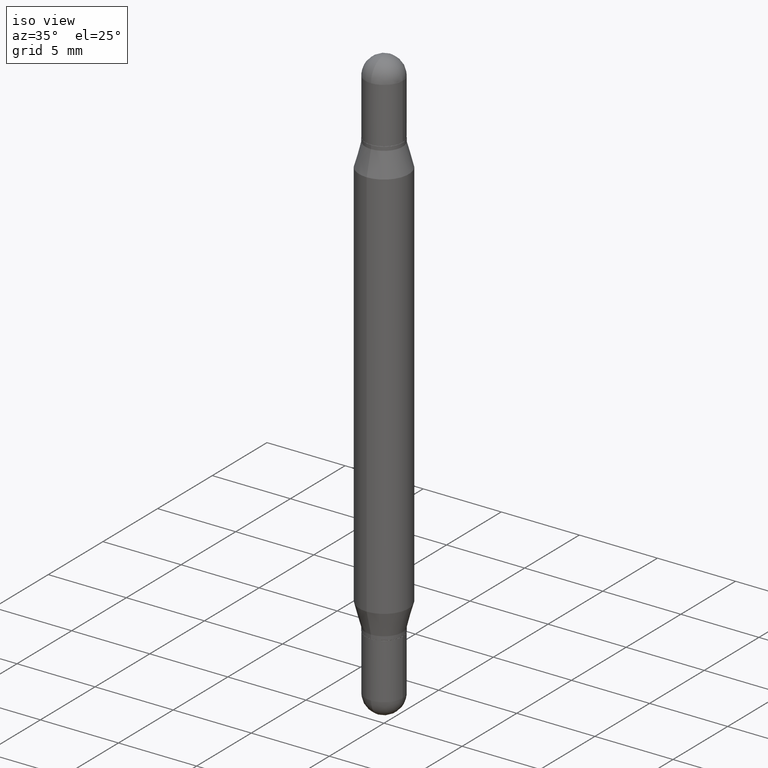
[diagram: clean part render]
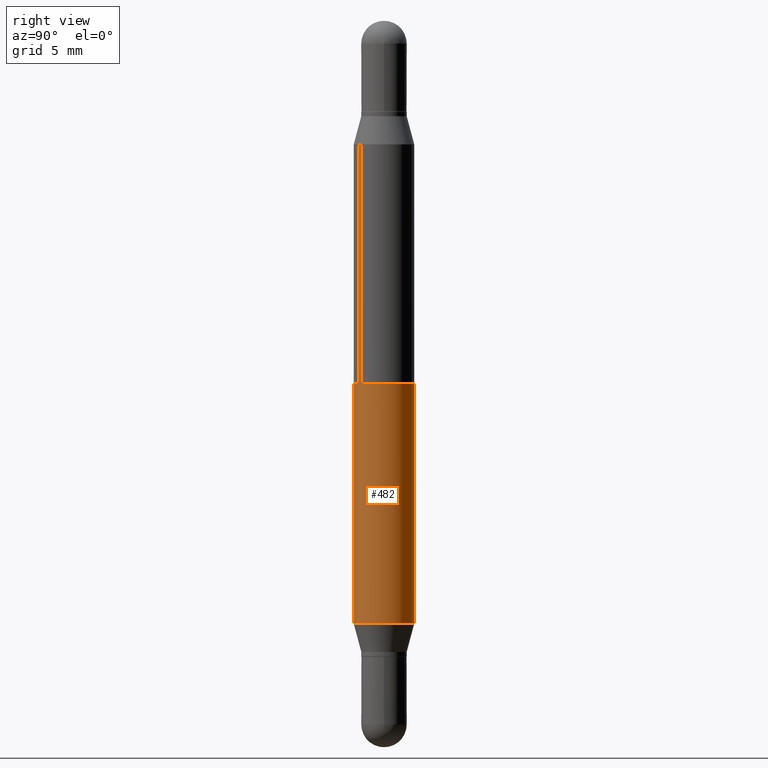
[diagram: tour spotlight — one face highlighted and labeled with its STEP entity id]
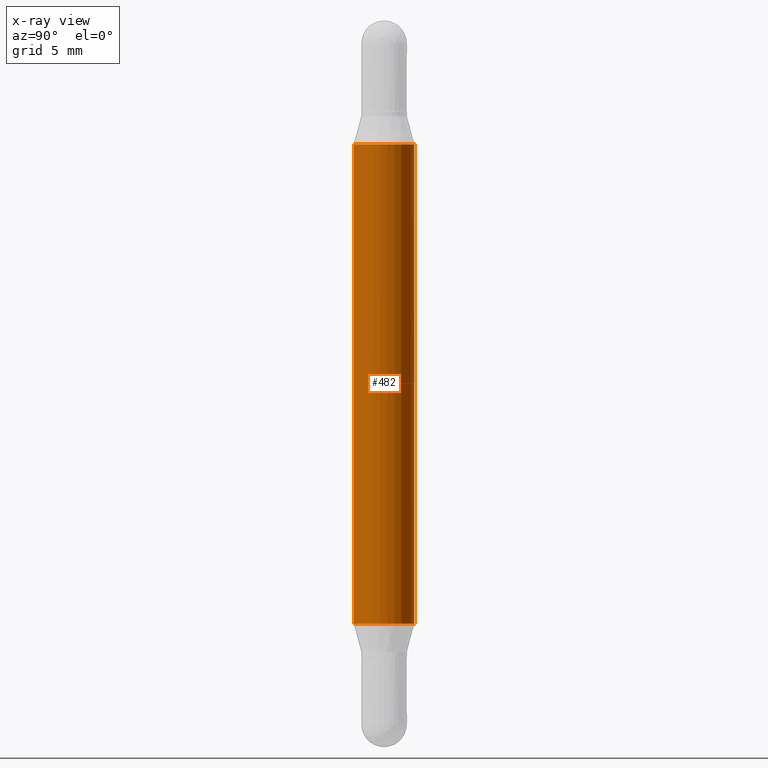
[diagram: x-ray of the same camera — body ghosted, this tour face saturated]
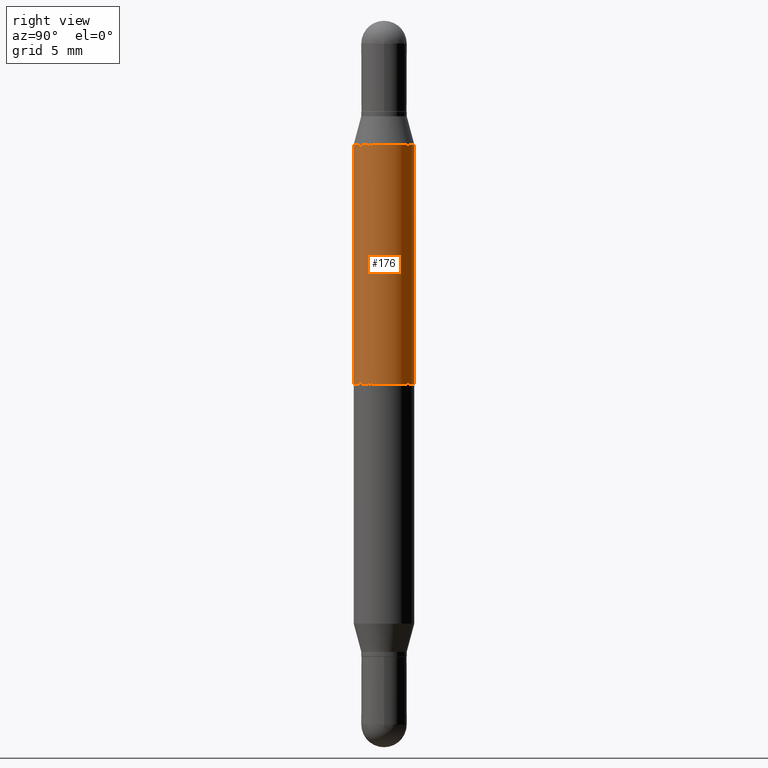
[diagram: tour spotlight — one face highlighted and labeled with its STEP entity id]
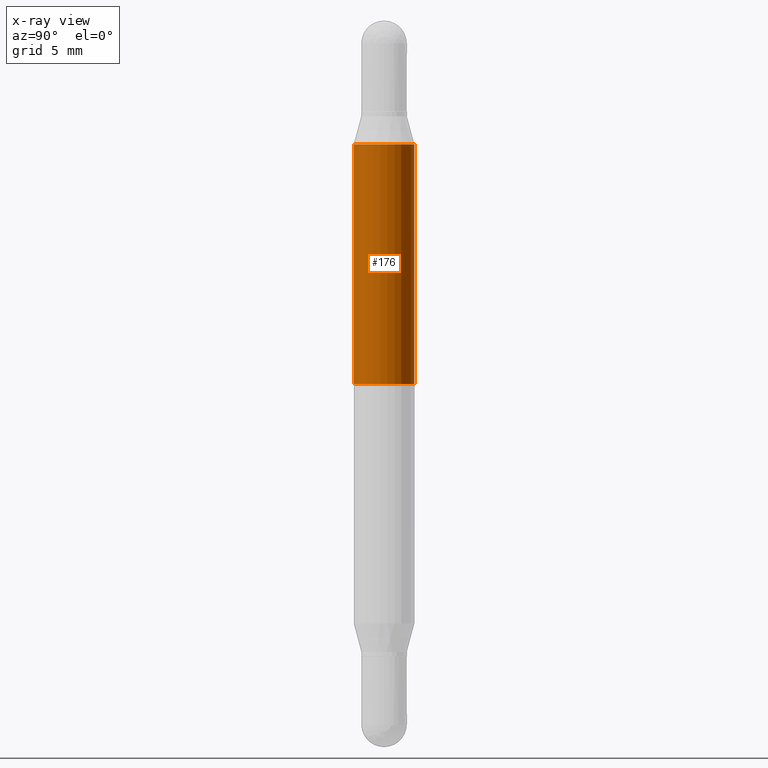
[diagram: x-ray of the same camera — body ghosted, this tour face saturated]
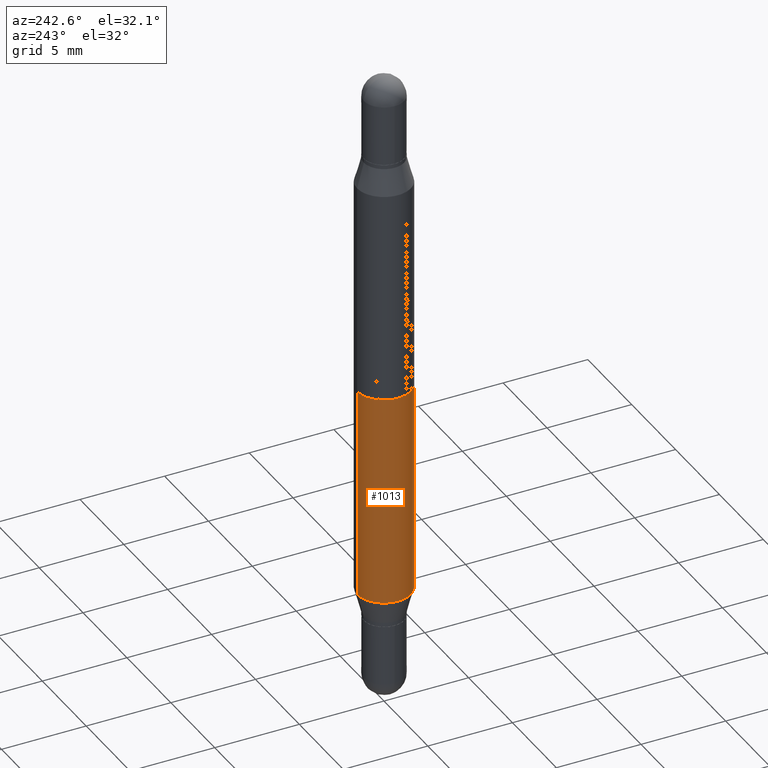
[diagram: tour spotlight — one face highlighted and labeled with its STEP entity id]
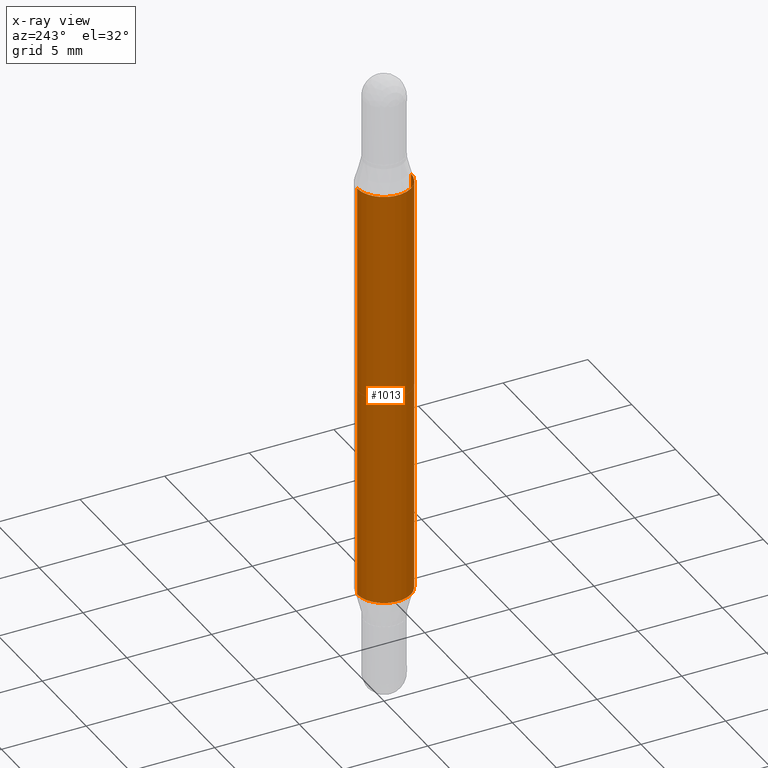
[diagram: x-ray of the same camera — body ghosted, this tour face saturated]
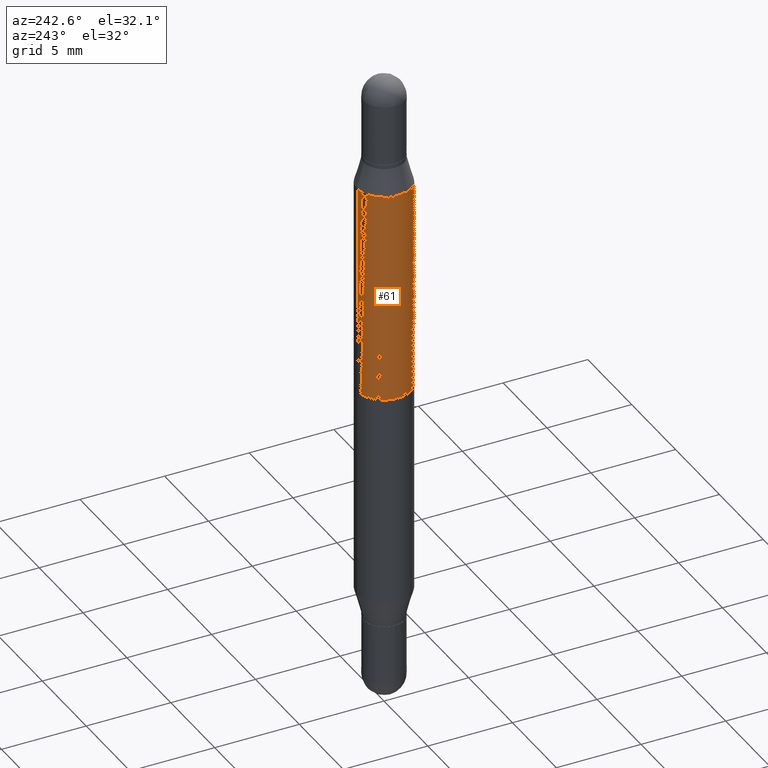
[diagram: tour spotlight — one face highlighted and labeled with its STEP entity id]
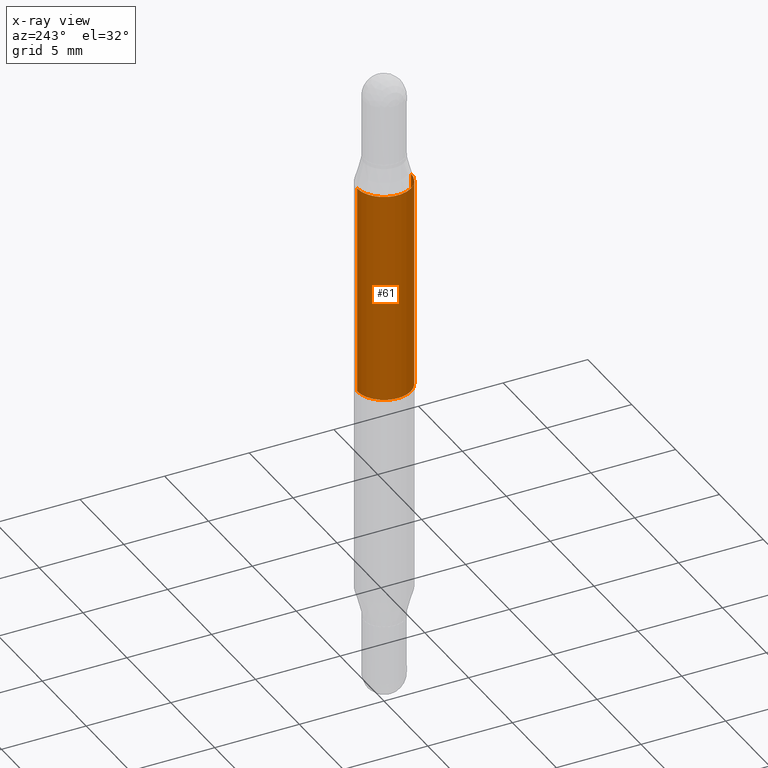
[diagram: x-ray of the same camera — body ghosted, this tour face saturated]
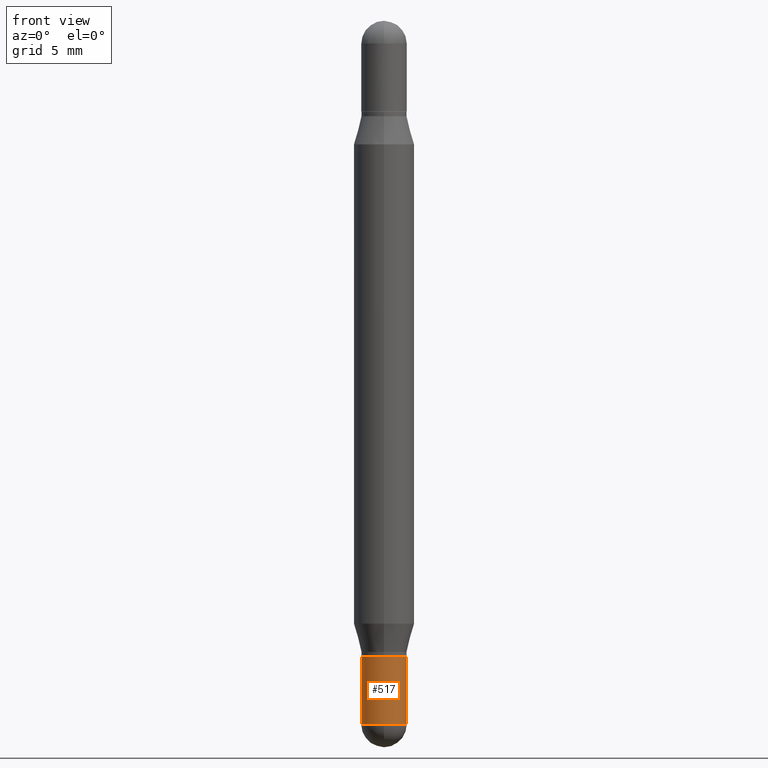
[diagram: tour spotlight — one face highlighted and labeled with its STEP entity id]
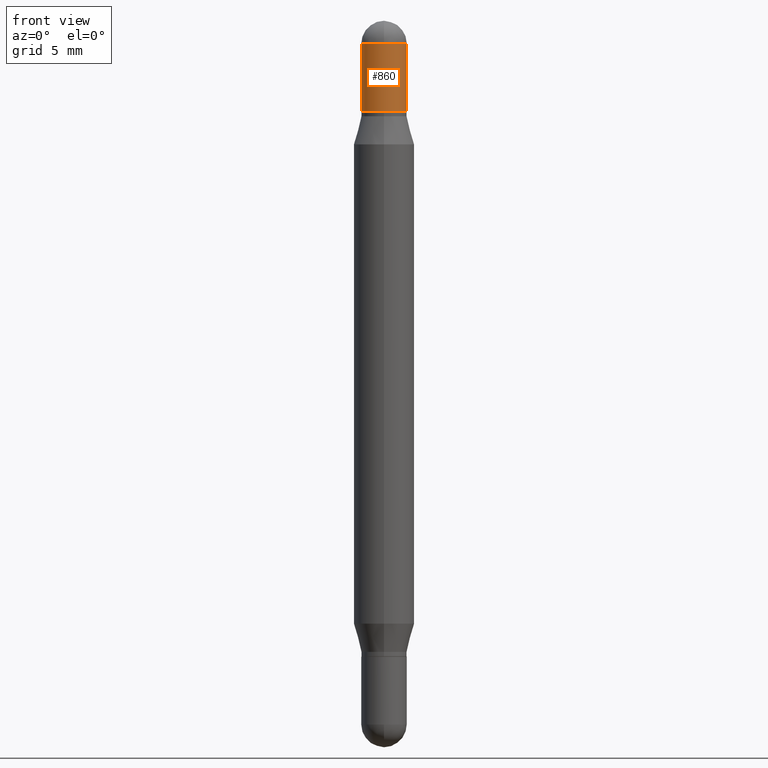
[diagram: tour spotlight — one face highlighted and labeled with its STEP entity id]
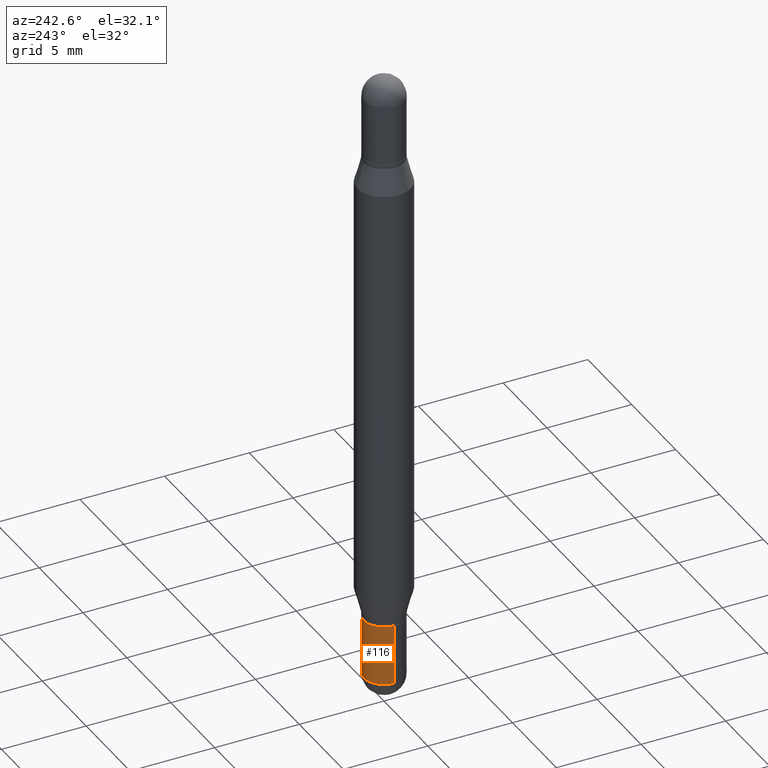
[diagram: tour spotlight — one face highlighted and labeled with its STEP entity id]
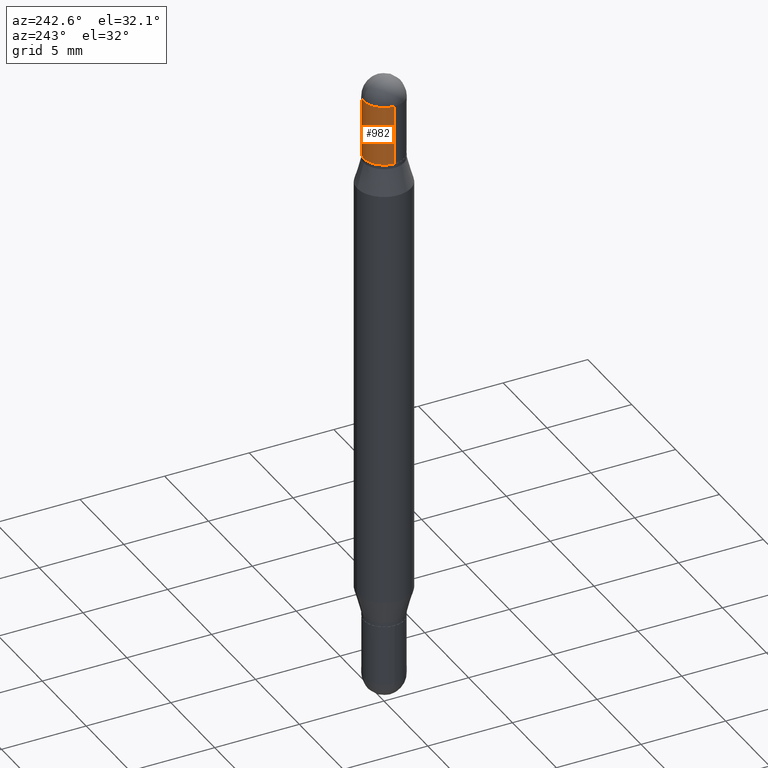
[diagram: tour spotlight — one face highlighted and labeled with its STEP entity id]
A machine part: a face-by-face anatomy tour. The part has 41 B-rep faces; the first image is the clean iso view, then the 8 largest visible faces are spotlighted one at a time (largest first), each with its STEP entity span.

Face 1 — right view, entity #482. An x-ray twin of the same camera follows (body ghosted, this face saturated) — the face is partly hidden behind the body. In plain terms, the highlighted cylindrical surface (edge-blend (fillet) strip) has radius 1.5875 mm, axis along (-0, -0, -1).
Definition (entity closure, byte-faithful):
#1 = ORIENTED_EDGE ( 'NONE', *, *, #1002, .F. ) ;
#3 = DIRECTION ( 'NONE',  ( -6.982962677686265922E-15, -1.000000000000000000, 4.370956789862821150E-15 ) ) ;
#32 = VERTEX_POINT ( 'NONE', #991 ) ;
#47 = CARTESIAN_POINT ( 'NONE',  ( 0.000000000000000000, -5.228321854365732350E-15, -1.500000000000000444 ) ) ;
#52 = DIRECTION ( 'NONE',  ( -2.445640986217375071E-29, -3.479861038583872715E-15, -1.000000000000000000 ) ) ;
#162 = VERTEX_POINT ( 'NONE', #530 ) ;
#174 = CARTESIAN_POINT ( 'NONE',  ( 3.044285004926114619E-29, -4.345819239403255342E-15, -1.244780007401924626 ) ) ;
#197 = CARTESIAN_POINT ( 'NONE',  ( -4.364351673553916201E-16, -0.06250000000000521805, -1.500000000000000222 ) ) ;
#278 = LINE ( 'NONE', #197, #833 ) ;
#293 = AXIS2_PLACEMENT_3D ( 'NONE', #174, #934, #3 ) ;
#346 = AXIS2_PLACEMENT_3D ( 'NONE', #47, #52, #738 ) ;
#353 = EDGE_CURVE ( 'NONE', #498, #843, #278, .T. ) ;
#368 = CIRCLE ( 'NONE', #293, 0.06250000000000000000 ) ;
#372 = CARTESIAN_POINT ( 'NONE',  ( -4.364351673553611504E-16, -0.06250000000000434375, -1.244780007401924404 ) ) ;
#396 = LINE ( 'NONE', #675, #404 ) ;
#404 = VECTOR ( 'NONE', #914, 39.37007874015748143 ) ;
#409 = CARTESIAN_POINT ( 'NONE',  ( 3.044285004926114619E-29, -8.966604049996300104E-16, -0.2552199925980758177 ) ) ;
#482 = ADVANCED_FACE ( 'NONE', ( #501 ), #759, .T. ) ;
#498 = VERTEX_POINT ( 'NONE', #1090 ) ;
#501 = FACE_OUTER_BOUND ( 'NONE', #550, .T. ) ;
#525 = CIRCLE ( 'NONE', #922, 0.06250000000000000000 ) ;
#530 = CARTESIAN_POINT ( 'NONE',  ( 4.287811248607390144E-16, 0.06249999999999565625, -1.244780007401924848 ) ) ;
#550 = EDGE_LOOP ( 'NONE', ( #740, #1, #689, #790 ) ) ;
#578 = EDGE_CURVE ( 'NONE', #32, #162, #396, .T. ) ;
#675 = CARTESIAN_POINT ( 'NONE',  ( 4.287811248607206733E-16, 0.06249999999999477501, -1.500000000000000666 ) ) ;
#689 = ORIENTED_EDGE ( 'NONE', *, *, #353, .T. ) ;
#724 = DIRECTION ( 'NONE',  ( -2.445640986217375071E-29, -3.479861038583872715E-15, -1.000000000000000000 ) ) ;
#738 = DIRECTION ( 'NONE',  ( -6.982962677686265922E-15, -1.000000000000000000, 4.370956789862821150E-15 ) ) ;
#740 = ORIENTED_EDGE ( 'NONE', *, *, #578, .F. ) ;
#759 = CYLINDRICAL_SURFACE ( 'NONE', #346, 0.06250000000000000000 ) ;
#790 = ORIENTED_EDGE ( 'NONE', *, *, #1103, .T. ) ;
#833 = VECTOR ( 'NONE', #724, 39.37007874015748143 ) ;
#843 = VERTEX_POINT ( 'NONE', #372 ) ;
#914 = DIRECTION ( 'NONE',  ( -2.445640986217375071E-29, -3.479861038583872715E-15, -1.000000000000000000 ) ) ;
#922 = AXIS2_PLACEMENT_3D ( 'NONE', #409, #926, #1083 ) ;
#926 = DIRECTION ( 'NONE',  ( 2.445640986217375071E-29, 3.479861038583872715E-15, 1.000000000000000000 ) ) ;
#934 = DIRECTION ( 'NONE',  ( -2.445640986217375071E-29, 3.491234767237101121E-15, 1.000000000000000000 ) ) ;
#991 = CARTESIAN_POINT ( 'NONE',  ( 4.287811248607510938E-16, 0.06249999999999910488, -0.2552199925980759843 ) ) ;
#1002 = EDGE_CURVE ( 'NONE', #498, #32, #525, .T. ) ;
#1083 = DIRECTION ( 'NONE',  ( -6.982962677686265922E-15, -1.000000000000000000, 3.278217592397115862E-15 ) ) ;
#1090 = CARTESIAN_POINT ( 'NONE',  ( -4.364351673553612490E-16, -0.06250000000000090206, -0.2552199925980755957 ) ) ;
#1103 = EDGE_CURVE ( 'NONE', #843, #162, #368, .T. ) ;

Face 2 — right view, entity #176. An x-ray twin of the same camera follows (body ghosted, this face saturated) — the face is partly hidden behind the body. In plain terms, the highlighted cylindrical surface (edge-blend (fillet) strip) has radius 1.5875 mm, axis along (-0, -0, -1).
Definition (entity closure, byte-faithful):
#95 = CIRCLE ( 'NONE', #976, 0.06250000000000000000 ) ;
#133 = DIRECTION ( 'NONE',  ( 2.445640986217375071E-29, 3.479861038583872715E-15, 1.000000000000000000 ) ) ;
#147 = CIRCLE ( 'NONE', #1015, 0.06250000000000000000 ) ;
#153 = EDGE_CURVE ( 'NONE', #999, #826, #506, .T. ) ;
#163 = EDGE_CURVE ( 'NONE', #826, #261, #147, .T. ) ;
#169 = DIRECTION ( 'NONE',  ( -2.445640986217375071E-29, -3.479861038583872715E-15, -1.000000000000000000 ) ) ;
#176 = ADVANCED_FACE ( 'NONE', ( #1097 ), #317, .T. ) ;
#218 = ORIENTED_EDGE ( 'NONE', *, *, #163, .F. ) ;
#261 = VERTEX_POINT ( 'NONE', #683 ) ;
#317 = CYLINDRICAL_SURFACE ( 'NONE', #688, 0.06250000000000000000 ) ;
#350 = EDGE_LOOP ( 'NONE', ( #492, #758, #992, #218 ) ) ;
#398 = VECTOR ( 'NONE', #1029, 39.37007874015748143 ) ;
#407 = CARTESIAN_POINT ( 'NONE',  ( 1.834230739663031583E-29, -2.618426075427826630E-15, -0.7500000000000002220 ) ) ;
#428 = DIRECTION ( 'NONE',  ( -6.982962677686265922E-15, -1.000000000000000000, 4.370956789862821150E-15 ) ) ;
#480 = CARTESIAN_POINT ( 'NONE',  ( 3.044285004926114619E-29, -8.966604049996300104E-16, -0.2552199925980758177 ) ) ;
#492 = ORIENTED_EDGE ( 'NONE', *, *, #153, .F. ) ;
#506 = LINE ( 'NONE', #581, #398 ) ;
#528 = EDGE_CURVE ( 'NONE', #648, #999, #95, .T. ) ;
#581 = CARTESIAN_POINT ( 'NONE',  ( 4.287811248607206733E-16, 0.06249999999999477501, -1.500000000000000666 ) ) ;
#590 = LINE ( 'NONE', #935, #709 ) ;
#594 = DIRECTION ( 'NONE',  ( -0.000000000000000000, -3.485547902910486918E-15, -1.000000000000000000 ) ) ;
#648 = VERTEX_POINT ( 'NONE', #848 ) ;
#665 = CARTESIAN_POINT ( 'NONE',  ( 4.287811248607510938E-16, 0.06249999999999910488, -0.2552199925980759843 ) ) ;
#683 = CARTESIAN_POINT ( 'NONE',  ( -4.364351673553732298E-16, -0.06250000000000262290, -0.7499999999999998890 ) ) ;
#688 = AXIS2_PLACEMENT_3D ( 'NONE', #1116, #169, #428 ) ;
#709 = VECTOR ( 'NONE', #792, 39.37007874015748143 ) ;
#758 = ORIENTED_EDGE ( 'NONE', *, *, #528, .F. ) ;
#777 = EDGE_CURVE ( 'NONE', #648, #261, #590, .T. ) ;
#792 = DIRECTION ( 'NONE',  ( -2.445640986217375071E-29, -3.479861038583872715E-15, -1.000000000000000000 ) ) ;
#826 = VERTEX_POINT ( 'NONE', #1060 ) ;
#840 = DIRECTION ( 'NONE',  ( -6.982962677686265922E-15, -1.000000000000000000, 3.278217592397115862E-15 ) ) ;
#848 = CARTESIAN_POINT ( 'NONE',  ( -4.364351673553612490E-16, -0.06250000000000090206, -0.2552199925980755957 ) ) ;
#935 = CARTESIAN_POINT ( 'NONE',  ( -4.364351673553916201E-16, -0.06250000000000521805, -1.500000000000000222 ) ) ;
#940 = DIRECTION ( 'NONE',  ( 0.000000000000000000, 1.000000000000000000, -4.370956789862821150E-15 ) ) ;
#976 = AXIS2_PLACEMENT_3D ( 'NONE', #480, #133, #840 ) ;
#992 = ORIENTED_EDGE ( 'NONE', *, *, #777, .T. ) ;
#999 = VERTEX_POINT ( 'NONE', #665 ) ;
#1015 = AXIS2_PLACEMENT_3D ( 'NONE', #407, #594, #940 ) ;
#1029 = DIRECTION ( 'NONE',  ( -2.445640986217375071E-29, -3.479861038583872715E-15, -1.000000000000000000 ) ) ;
#1060 = CARTESIAN_POINT ( 'NONE',  ( 4.287811248607450787E-16, 0.06249999999999737710, -0.7500000000000004441 ) ) ;
#1097 = FACE_OUTER_BOUND ( 'NONE', #350, .T. ) ;
#1116 = CARTESIAN_POINT ( 'NONE',  ( 0.000000000000000000, -5.228321854365732350E-15, -1.500000000000000444 ) ) ;

Face 3 — auxiliary view, entity #1013. An x-ray twin of the same camera follows (body ghosted, this face saturated) — the face is partly hidden behind the body. In plain terms, the highlighted cylindrical surface (edge-blend (fillet) strip) has radius 1.5875 mm, axis along (-0, -0, -1).
Definition (entity closure, byte-faithful):
#26 = CARTESIAN_POINT ( 'NONE',  ( 3.044285004926114619E-29, -4.345819239403255342E-15, -1.244780007401924626 ) ) ;
#32 = VERTEX_POINT ( 'NONE', #991 ) ;
#162 = VERTEX_POINT ( 'NONE', #530 ) ;
#197 = CARTESIAN_POINT ( 'NONE',  ( -4.364351673553916201E-16, -0.06250000000000521805, -1.500000000000000222 ) ) ;
#226 = FACE_OUTER_BOUND ( 'NONE', #676, .T. ) ;
#241 = ORIENTED_EDGE ( 'NONE', *, *, #445, .T. ) ;
#278 = LINE ( 'NONE', #197, #833 ) ;
#303 = ORIENTED_EDGE ( 'NONE', *, *, #578, .T. ) ;
#353 = EDGE_CURVE ( 'NONE', #498, #843, #278, .T. ) ;
#372 = CARTESIAN_POINT ( 'NONE',  ( -4.364351673553611504E-16, -0.06250000000000434375, -1.244780007401924404 ) ) ;
#396 = LINE ( 'NONE', #675, #404 ) ;
#404 = VECTOR ( 'NONE', #914, 39.37007874015748143 ) ;
#406 = CARTESIAN_POINT ( 'NONE',  ( 3.044285004926114619E-29, -8.966604049996300104E-16, -0.2552199925980758177 ) ) ;
#437 = CIRCLE ( 'NONE', #510, 0.06250000000000000000 ) ;
#445 = EDGE_CURVE ( 'NONE', #162, #843, #452, .T. ) ;
#452 = CIRCLE ( 'NONE', #1091, 0.06250000000000000000 ) ;
#481 = EDGE_CURVE ( 'NONE', #32, #498, #437, .T. ) ;
#498 = VERTEX_POINT ( 'NONE', #1090 ) ;
#510 = AXIS2_PLACEMENT_3D ( 'NONE', #406, #657, #845 ) ;
#530 = CARTESIAN_POINT ( 'NONE',  ( 4.287811248607390144E-16, 0.06249999999999565625, -1.244780007401924848 ) ) ;
#541 = AXIS2_PLACEMENT_3D ( 'NONE', #741, #649, #643 ) ;
#574 = ORIENTED_EDGE ( 'NONE', *, *, #481, .F. ) ;
#578 = EDGE_CURVE ( 'NONE', #32, #162, #396, .T. ) ;
#643 = DIRECTION ( 'NONE',  ( -6.982962677686265922E-15, -1.000000000000000000, 4.370956789862821150E-15 ) ) ;
#649 = DIRECTION ( 'NONE',  ( -2.445640986217375071E-29, -3.479861038583872715E-15, -1.000000000000000000 ) ) ;
#657 = DIRECTION ( 'NONE',  ( 2.445640986217375071E-29, 3.479861038583872715E-15, 1.000000000000000000 ) ) ;
#675 = CARTESIAN_POINT ( 'NONE',  ( 4.287811248607206733E-16, 0.06249999999999477501, -1.500000000000000666 ) ) ;
#676 = EDGE_LOOP ( 'NONE', ( #574, #303, #241, #838 ) ) ;
#713 = DIRECTION ( 'NONE',  ( -6.982962677686265922E-15, -1.000000000000000000, 4.370956789862821150E-15 ) ) ;
#724 = DIRECTION ( 'NONE',  ( -2.445640986217375071E-29, -3.479861038583872715E-15, -1.000000000000000000 ) ) ;
#741 = CARTESIAN_POINT ( 'NONE',  ( 0.000000000000000000, -5.228321854365732350E-15, -1.500000000000000444 ) ) ;
#804 = DIRECTION ( 'NONE',  ( -2.445640986217375071E-29, 3.491234767237101121E-15, 1.000000000000000000 ) ) ;
#833 = VECTOR ( 'NONE', #724, 39.37007874015748143 ) ;
#838 = ORIENTED_EDGE ( 'NONE', *, *, #353, .F. ) ;
#843 = VERTEX_POINT ( 'NONE', #372 ) ;
#845 = DIRECTION ( 'NONE',  ( -6.982962677686265922E-15, -1.000000000000000000, 3.278217592397115862E-15 ) ) ;
#914 = DIRECTION ( 'NONE',  ( -2.445640986217375071E-29, -3.479861038583872715E-15, -1.000000000000000000 ) ) ;
#991 = CARTESIAN_POINT ( 'NONE',  ( 4.287811248607510938E-16, 0.06249999999999910488, -0.2552199925980759843 ) ) ;
#1013 = ADVANCED_FACE ( 'NONE', ( #226 ), #1101, .T. ) ;
#1090 = CARTESIAN_POINT ( 'NONE',  ( -4.364351673553612490E-16, -0.06250000000000090206, -0.2552199925980755957 ) ) ;
#1091 = AXIS2_PLACEMENT_3D ( 'NONE', #26, #804, #713 ) ;
#1101 = CYLINDRICAL_SURFACE ( 'NONE', #541, 0.06250000000000000000 ) ;

Face 4 — auxiliary view, entity #61. An x-ray twin of the same camera follows (body ghosted, this face saturated) — the face is partly hidden behind the body. In plain terms, the highlighted cylindrical surface (edge-blend (fillet) strip) has radius 1.5875 mm, axis along (-0, -0, -1).
Definition (entity closure, byte-faithful):
#61 = ADVANCED_FACE ( 'NONE', ( #207 ), #910, .T. ) ;
#82 = DIRECTION ( 'NONE',  ( 2.445640986217375071E-29, 3.479861038583872715E-15, 1.000000000000000000 ) ) ;
#143 = DIRECTION ( 'NONE',  ( -2.445640986217375071E-29, -3.479861038583872715E-15, -1.000000000000000000 ) ) ;
#150 = AXIS2_PLACEMENT_3D ( 'NONE', #705, #975, #806 ) ;
#153 = EDGE_CURVE ( 'NONE', #999, #826, #506, .T. ) ;
#165 = EDGE_CURVE ( 'NONE', #999, #648, #328, .T. ) ;
#182 = AXIS2_PLACEMENT_3D ( 'NONE', #298, #143, #397 ) ;
#190 = ORIENTED_EDGE ( 'NONE', *, *, #801, .F. ) ;
#207 = FACE_OUTER_BOUND ( 'NONE', #1088, .T. ) ;
#261 = VERTEX_POINT ( 'NONE', #683 ) ;
#298 = CARTESIAN_POINT ( 'NONE',  ( 0.000000000000000000, -5.228321854365732350E-15, -1.500000000000000444 ) ) ;
#328 = CIRCLE ( 'NONE', #778, 0.06250000000000000000 ) ;
#343 = ORIENTED_EDGE ( 'NONE', *, *, #153, .T. ) ;
#397 = DIRECTION ( 'NONE',  ( -6.982962677686265922E-15, -1.000000000000000000, 4.370956789862821150E-15 ) ) ;
#398 = VECTOR ( 'NONE', #1029, 39.37007874015748143 ) ;
#494 = CIRCLE ( 'NONE', #150, 0.06250000000000000000 ) ;
#506 = LINE ( 'NONE', #581, #398 ) ;
#581 = CARTESIAN_POINT ( 'NONE',  ( 4.287811248607206733E-16, 0.06249999999999477501, -1.500000000000000666 ) ) ;
#590 = LINE ( 'NONE', #935, #709 ) ;
#591 = CARTESIAN_POINT ( 'NONE',  ( 3.044285004926114619E-29, -8.966604049996300104E-16, -0.2552199925980758177 ) ) ;
#648 = VERTEX_POINT ( 'NONE', #848 ) ;
#655 = ORIENTED_EDGE ( 'NONE', *, *, #165, .F. ) ;
#665 = CARTESIAN_POINT ( 'NONE',  ( 4.287811248607510938E-16, 0.06249999999999910488, -0.2552199925980759843 ) ) ;
#683 = CARTESIAN_POINT ( 'NONE',  ( -4.364351673553732298E-16, -0.06250000000000262290, -0.7499999999999998890 ) ) ;
#705 = CARTESIAN_POINT ( 'NONE',  ( 1.834230739663031583E-29, -2.618426075427826630E-15, -0.7500000000000002220 ) ) ;
#709 = VECTOR ( 'NONE', #792, 39.37007874015748143 ) ;
#728 = ORIENTED_EDGE ( 'NONE', *, *, #777, .F. ) ;
#777 = EDGE_CURVE ( 'NONE', #648, #261, #590, .T. ) ;
#778 = AXIS2_PLACEMENT_3D ( 'NONE', #591, #82, #1047 ) ;
#792 = DIRECTION ( 'NONE',  ( -2.445640986217375071E-29, -3.479861038583872715E-15, -1.000000000000000000 ) ) ;
#801 = EDGE_CURVE ( 'NONE', #261, #826, #494, .T. ) ;
#806 = DIRECTION ( 'NONE',  ( 0.000000000000000000, 1.000000000000000000, -4.370956789862821150E-15 ) ) ;
#826 = VERTEX_POINT ( 'NONE', #1060 ) ;
#848 = CARTESIAN_POINT ( 'NONE',  ( -4.364351673553612490E-16, -0.06250000000000090206, -0.2552199925980755957 ) ) ;
#910 = CYLINDRICAL_SURFACE ( 'NONE', #182, 0.06250000000000000000 ) ;
#935 = CARTESIAN_POINT ( 'NONE',  ( -4.364351673553916201E-16, -0.06250000000000521805, -1.500000000000000222 ) ) ;
#975 = DIRECTION ( 'NONE',  ( -0.000000000000000000, -3.485547902910486918E-15, -1.000000000000000000 ) ) ;
#999 = VERTEX_POINT ( 'NONE', #665 ) ;
#1029 = DIRECTION ( 'NONE',  ( -2.445640986217375071E-29, -3.479861038583872715E-15, -1.000000000000000000 ) ) ;
#1047 = DIRECTION ( 'NONE',  ( -6.982962677686265922E-15, -1.000000000000000000, 3.278217592397115862E-15 ) ) ;
#1060 = CARTESIAN_POINT ( 'NONE',  ( 4.287811248607450787E-16, 0.06249999999999737710, -0.7500000000000004441 ) ) ;
#1088 = EDGE_LOOP ( 'NONE', ( #655, #343, #190, #728 ) ) ;

Face 5 — front view, entity #517. In plain terms, the highlighted cylindrical surface (edge-blend (fillet) strip) has radius 1.1913 mm, axis along (-0, 0, 1).
Definition (entity closure, byte-faithful):
#29 = DIRECTION ( 'NONE',  ( -2.445468806185136597E-29, 3.491481338843145583E-15, 1.000000000000000000 ) ) ;
#68 = CARTESIAN_POINT ( 'NONE',  ( -0.04689999999999999725, -4.495648722615525747E-15, -1.313000000000000167 ) ) ;
#69 = CARTESIAN_POINT ( 'NONE',  ( 0.04689999999999999725, -3.275009495834859024E-16, 2.286926907848294038E-30 ) ) ;
#72 = CARTESIAN_POINT ( 'NONE',  ( -3.275009495834508474E-16, -0.04690000000000513897, -1.453099999999999614 ) ) ;
#135 = VERTEX_POINT ( 'NONE', #645 ) ;
#137 = LINE ( 'NONE', #227, #745 ) ;
#142 = FACE_OUTER_BOUND ( 'NONE', #373, .T. ) ;
#149 = CARTESIAN_POINT ( 'NONE',  ( 0.04689999999999999725, -5.156394215270499012E-15, -1.453099999999999836 ) ) ;
#166 = AXIS2_PLACEMENT_3D ( 'NONE', #624, #798, #446 ) ;
#213 = EDGE_CURVE ( 'NONE', #497, #135, #701, .T. ) ;
#216 = DIRECTION ( 'NONE',  ( -2.445468806185136597E-29, 3.491481338843145583E-15, 1.000000000000000000 ) ) ;
#222 = CYLINDRICAL_SURFACE ( 'NONE', #1109, 0.04689999999999999725 ) ;
#227 = CARTESIAN_POINT ( 'NONE',  ( -0.04689999999999999725, 3.332445430714869676E-16, -2.306980557329550952E-30 ) ) ;
#272 = AXIS2_PLACEMENT_3D ( 'NONE', #816, #216, #990 ) ;
#294 = CARTESIAN_POINT ( 'NONE',  ( 3.553510722267622201E-29, -5.073471533472974042E-15, -1.453099999999999836 ) ) ;
#332 = EDGE_CURVE ( 'NONE', #418, #554, #651, .T. ) ;
#347 = CIRCLE ( 'NONE', #614, 0.04689999999999999725 ) ;
#364 = CIRCLE ( 'NONE', #272, 0.04689999999999999725 ) ;
#373 = EDGE_LOOP ( 'NONE', ( #626, #503, #514, #402, #605 ) ) ;
#402 = ORIENTED_EDGE ( 'NONE', *, *, #213, .T. ) ;
#418 = VERTEX_POINT ( 'NONE', #985 ) ;
#443 = EDGE_CURVE ( 'NONE', #485, #135, #364, .T. ) ;
#444 = DIRECTION ( 'NONE',  ( 1.000000000000000000, -6.982962677686277755E-15, 0.000000000000000000 ) ) ;
#446 = DIRECTION ( 'NONE',  ( 1.000000000000000000, -6.982962677686277755E-15, 0.000000000000000000 ) ) ;
#485 = VERTEX_POINT ( 'NONE', #68 ) ;
#497 = VERTEX_POINT ( 'NONE', #149 ) ;
#503 = ORIENTED_EDGE ( 'NONE', *, *, #332, .T. ) ;
#514 = ORIENTED_EDGE ( 'NONE', *, *, #814, .T. ) ;
#517 = ADVANCED_FACE ( 'NONE', ( #142 ), #222, .T. ) ;
#548 = EDGE_CURVE ( 'NONE', #418, #485, #137, .T. ) ;
#554 = VERTEX_POINT ( 'NONE', #72 ) ;
#572 = DIRECTION ( 'NONE',  ( -2.445468806185136597E-29, 3.491481338843145583E-15, 1.000000000000000000 ) ) ;
#587 = CARTESIAN_POINT ( 'NONE',  ( 0.000000000000000000, 0.000000000000000000, 0.000000000000000000 ) ) ;
#605 = ORIENTED_EDGE ( 'NONE', *, *, #443, .F. ) ;
#613 = DIRECTION ( 'NONE',  ( -2.445468806185136877E-29, 3.491481338843145188E-15, 1.000000000000000000 ) ) ;
#614 = AXIS2_PLACEMENT_3D ( 'NONE', #294, #29, #444 ) ;
#624 = CARTESIAN_POINT ( 'NONE',  ( 3.553510722267622201E-29, -5.073471533472974042E-15, -1.453099999999999836 ) ) ;
#626 = ORIENTED_EDGE ( 'NONE', *, *, #548, .F. ) ;
#645 = CARTESIAN_POINT ( 'NONE',  ( 0.04689999999999999725, -4.911815947484537290E-15, -1.313000000000000167 ) ) ;
#650 = DIRECTION ( 'NONE',  ( 1.000000000000000000, -6.982962677686266711E-15, 4.876176775795936353E-29 ) ) ;
#651 = CIRCLE ( 'NONE', #166, 0.04689999999999999725 ) ;
#701 = LINE ( 'NONE', #69, #744 ) ;
#744 = VECTOR ( 'NONE', #613, 39.37007874015748143 ) ;
#745 = VECTOR ( 'NONE', #1102, 39.37007874015748143 ) ;
#798 = DIRECTION ( 'NONE',  ( -2.445468806185136597E-29, 3.491481338843145583E-15, 1.000000000000000000 ) ) ;
#814 = EDGE_CURVE ( 'NONE', #554, #497, #347, .T. ) ;
#816 = CARTESIAN_POINT ( 'NONE',  ( 3.210900542521084585E-29, -4.584314997901050598E-15, -1.313000000000000167 ) ) ;
#985 = CARTESIAN_POINT ( 'NONE',  ( -0.04689999999999999725, -4.495648722615525747E-15, -1.453099999999999836 ) ) ;
#990 = DIRECTION ( 'NONE',  ( 1.000000000000000000, -6.982962677686277755E-15, 0.000000000000000000 ) ) ;
#1102 = DIRECTION ( 'NONE',  ( -2.445468806185136877E-29, 3.491481338843145188E-15, 1.000000000000000000 ) ) ;
#1109 = AXIS2_PLACEMENT_3D ( 'NONE', #587, #572, #650 ) ;

Face 6 — front view, entity #860. In plain terms, the highlighted cylindrical surface (edge-blend (fillet) strip) has radius 1.1913 mm, axis along (-0, -0, -1).
Definition (entity closure, byte-faithful):
#19 = CARTESIAN_POINT ( 'NONE',  ( -0.04689999999999999725, -9.408370971656158891E-17, -0.1870000000000002216 ) ) ;
#31 = CARTESIAN_POINT ( 'NONE',  ( -0.04689999999999999725, -4.906564498270247118E-15, -1.500000000000000444 ) ) ;
#38 = ORIENTED_EDGE ( 'NONE', *, *, #769, .F. ) ;
#41 = AXIS2_PLACEMENT_3D ( 'NONE', #269, #462, #1046 ) ;
#63 = EDGE_CURVE ( 'NONE', #194, #841, #670, .T. ) ;
#138 = CARTESIAN_POINT ( 'NONE',  ( 3.553510722267622201E-29, -1.720940724002502970E-16, -0.04690000000000053154 ) ) ;
#170 = VERTEX_POINT ( 'NONE', #513 ) ;
#188 = CARTESIAN_POINT ( 'NONE',  ( 3.553510722267622201E-29, -1.720940724002502970E-16, -0.04690000000000053154 ) ) ;
#194 = VERTEX_POINT ( 'NONE', #244 ) ;
#195 = CARTESIAN_POINT ( 'NONE',  ( -3.275009495834508474E-16, -0.04690000000000024011, -0.04690000000000036501 ) ) ;
#199 = VECTOR ( 'NONE', #370, 39.37007874015748143 ) ;
#244 = CARTESIAN_POINT ( 'NONE',  ( -0.04689999999999999725, -9.408370971656128076E-17, -0.04690000000000053154 ) ) ;
#269 = CARTESIAN_POINT ( 'NONE',  ( 0.000000000000000000, -5.228321854365732350E-15, -1.500000000000000444 ) ) ;
#333 = EDGE_CURVE ( 'NONE', #194, #440, #971, .T. ) ;
#361 = DIRECTION ( 'NONE',  ( 1.000000000000000000, -6.982962677686266711E-15, 0.000000000000000000 ) ) ;
#370 = DIRECTION ( 'NONE',  ( -2.445468806185136877E-29, -3.479614466977828648E-15, -1.000000000000000000 ) ) ;
#405 = VECTOR ( 'NONE', #441, 39.37007874015748143 ) ;
#412 = ORIENTED_EDGE ( 'NONE', *, *, #63, .F. ) ;
#440 = VERTEX_POINT ( 'NONE', #19 ) ;
#441 = DIRECTION ( 'NONE',  ( -2.445468806185136877E-29, -3.479614466977828648E-15, -1.000000000000000000 ) ) ;
#462 = DIRECTION ( 'NONE',  ( -2.445468806185136597E-29, -3.479614466977828254E-15, -1.000000000000000000 ) ) ;
#490 = ORIENTED_EDGE ( 'NONE', *, *, #809, .F. ) ;
#513 = CARTESIAN_POINT ( 'NONE',  ( 0.04689999999999999725, -9.870890088073285070E-16, -0.1870000000000002216 ) ) ;
#515 = CARTESIAN_POINT ( 'NONE',  ( 0.04689999999999999725, -7.433420153955320943E-16, -0.04690000000000053154 ) ) ;
#561 = CIRCLE ( 'NONE', #799, 0.04689999999999999725 ) ;
#607 = CARTESIAN_POINT ( 'NONE',  ( 0.04689999999999999725, -5.555822803949218252E-15, -1.500000000000000444 ) ) ;
#619 = CYLINDRICAL_SURFACE ( 'NONE', #41, 0.04689999999999999725 ) ;
#637 = DIRECTION ( 'NONE',  ( 2.445468806185136597E-29, 3.479614466977828254E-15, 1.000000000000000000 ) ) ;
#670 = CIRCLE ( 'NONE', #723, 0.04689999999999999725 ) ;
#717 = EDGE_CURVE ( 'NONE', #440, #170, #1092, .T. ) ;
#723 = AXIS2_PLACEMENT_3D ( 'NONE', #138, #1093, #898 ) ;
#769 = EDGE_CURVE ( 'NONE', #1117, #170, #1044, .T. ) ;
#785 = ORIENTED_EDGE ( 'NONE', *, *, #717, .T. ) ;
#799 = AXIS2_PLACEMENT_3D ( 'NONE', #188, #637, #361 ) ;
#809 = EDGE_CURVE ( 'NONE', #841, #1117, #561, .T. ) ;
#818 = AXIS2_PLACEMENT_3D ( 'NONE', #864, #1037, #952 ) ;
#841 = VERTEX_POINT ( 'NONE', #195 ) ;
#860 = ADVANCED_FACE ( 'NONE', ( #1070 ), #619, .T. ) ;
#864 = CARTESIAN_POINT ( 'NONE',  ( 3.210900542521084585E-29, -6.595880592238425060E-16, -0.1870000000000002216 ) ) ;
#898 = DIRECTION ( 'NONE',  ( 1.000000000000000000, -6.982962677686266711E-15, 0.000000000000000000 ) ) ;
#952 = DIRECTION ( 'NONE',  ( 1.000000000000000000, -6.982962677686266711E-15, 0.000000000000000000 ) ) ;
#962 = ORIENTED_EDGE ( 'NONE', *, *, #333, .T. ) ;
#971 = LINE ( 'NONE', #31, #199 ) ;
#1024 = EDGE_LOOP ( 'NONE', ( #412, #962, #785, #38, #490 ) ) ;
#1037 = DIRECTION ( 'NONE',  ( 2.445468806185136597E-29, 3.479614466977828254E-15, 1.000000000000000000 ) ) ;
#1044 = LINE ( 'NONE', #607, #405 ) ;
#1046 = DIRECTION ( 'NONE',  ( 1.000000000000000000, -6.982962677686277755E-15, 0.000000000000000000 ) ) ;
#1070 = FACE_OUTER_BOUND ( 'NONE', #1024, .T. ) ;
#1092 = CIRCLE ( 'NONE', #818, 0.04689999999999999725 ) ;
#1093 = DIRECTION ( 'NONE',  ( 2.445468806185136597E-29, 3.479614466977828254E-15, 1.000000000000000000 ) ) ;
#1117 = VERTEX_POINT ( 'NONE', #515 ) ;

Face 7 — auxiliary view, entity #116. In plain terms, the highlighted cylindrical surface (edge-blend (fillet) strip) has radius 1.1913 mm, axis along (-0, 0, 1).
Definition (entity closure, byte-faithful):
#5 = AXIS2_PLACEMENT_3D ( 'NONE', #238, #410, #756 ) ;
#34 = DIRECTION ( 'NONE',  ( 1.000000000000000000, -6.982962677686277755E-15, 0.000000000000000000 ) ) ;
#68 = CARTESIAN_POINT ( 'NONE',  ( -0.04689999999999999725, -4.495648722615525747E-15, -1.313000000000000167 ) ) ;
#69 = CARTESIAN_POINT ( 'NONE',  ( 0.04689999999999999725, -3.275009495834859024E-16, 2.286926907848294038E-30 ) ) ;
#88 = EDGE_LOOP ( 'NONE', ( #322, #144, #584, #1000, #454 ) ) ;
#90 = CARTESIAN_POINT ( 'NONE',  ( 3.332445430715229101E-16, 0.04689999999999499430, -1.453100000000000058 ) ) ;
#99 = DIRECTION ( 'NONE',  ( 1.000000000000000000, -6.982962677686277755E-15, 0.000000000000000000 ) ) ;
#116 = ADVANCED_FACE ( 'NONE', ( #124 ), #476, .T. ) ;
#124 = FACE_OUTER_BOUND ( 'NONE', #88, .T. ) ;
#130 = AXIS2_PLACEMENT_3D ( 'NONE', #870, #160, #99 ) ;
#135 = VERTEX_POINT ( 'NONE', #645 ) ;
#137 = LINE ( 'NONE', #227, #745 ) ;
#144 = ORIENTED_EDGE ( 'NONE', *, *, #548, .T. ) ;
#149 = CARTESIAN_POINT ( 'NONE',  ( 0.04689999999999999725, -5.156394215270499012E-15, -1.453099999999999836 ) ) ;
#160 = DIRECTION ( 'NONE',  ( -2.445468806185136597E-29, 3.491481338843145583E-15, 1.000000000000000000 ) ) ;
#213 = EDGE_CURVE ( 'NONE', #497, #135, #701, .T. ) ;
#217 = CARTESIAN_POINT ( 'NONE',  ( 0.000000000000000000, 0.000000000000000000, 0.000000000000000000 ) ) ;
#227 = CARTESIAN_POINT ( 'NONE',  ( -0.04689999999999999725, 3.332445430714869676E-16, -2.306980557329550952E-30 ) ) ;
#238 = CARTESIAN_POINT ( 'NONE',  ( 3.210900542521084585E-29, -4.584314997901050598E-15, -1.313000000000000167 ) ) ;
#273 = AXIS2_PLACEMENT_3D ( 'NONE', #628, #532, #34 ) ;
#322 = ORIENTED_EDGE ( 'NONE', *, *, #782, .T. ) ;
#410 = DIRECTION ( 'NONE',  ( -2.445468806185136597E-29, 3.491481338843145583E-15, 1.000000000000000000 ) ) ;
#418 = VERTEX_POINT ( 'NONE', #985 ) ;
#454 = ORIENTED_EDGE ( 'NONE', *, *, #698, .T. ) ;
#469 = CIRCLE ( 'NONE', #130, 0.04689999999999999725 ) ;
#476 = CYLINDRICAL_SURFACE ( 'NONE', #762, 0.04689999999999999725 ) ;
#485 = VERTEX_POINT ( 'NONE', #68 ) ;
#497 = VERTEX_POINT ( 'NONE', #149 ) ;
#532 = DIRECTION ( 'NONE',  ( -2.445468806185136597E-29, 3.491481338843145583E-15, 1.000000000000000000 ) ) ;
#537 = EDGE_CURVE ( 'NONE', #135, #485, #886, .T. ) ;
#548 = EDGE_CURVE ( 'NONE', #418, #485, #137, .T. ) ;
#584 = ORIENTED_EDGE ( 'NONE', *, *, #537, .F. ) ;
#613 = DIRECTION ( 'NONE',  ( -2.445468806185136877E-29, 3.491481338843145188E-15, 1.000000000000000000 ) ) ;
#628 = CARTESIAN_POINT ( 'NONE',  ( 3.553510722267622201E-29, -5.073471533472974042E-15, -1.453099999999999836 ) ) ;
#645 = CARTESIAN_POINT ( 'NONE',  ( 0.04689999999999999725, -4.911815947484537290E-15, -1.313000000000000167 ) ) ;
#698 = EDGE_CURVE ( 'NONE', #497, #1065, #469, .T. ) ;
#701 = LINE ( 'NONE', #69, #744 ) ;
#744 = VECTOR ( 'NONE', #613, 39.37007874015748143 ) ;
#745 = VECTOR ( 'NONE', #1102, 39.37007874015748143 ) ;
#756 = DIRECTION ( 'NONE',  ( 1.000000000000000000, -6.982962677686277755E-15, 0.000000000000000000 ) ) ;
#762 = AXIS2_PLACEMENT_3D ( 'NONE', #217, #1081, #829 ) ;
#782 = EDGE_CURVE ( 'NONE', #1065, #418, #1054, .T. ) ;
#829 = DIRECTION ( 'NONE',  ( 1.000000000000000000, -6.982962677686266711E-15, 4.876176775795936353E-29 ) ) ;
#870 = CARTESIAN_POINT ( 'NONE',  ( 3.553510722267622201E-29, -5.073471533472974042E-15, -1.453099999999999836 ) ) ;
#886 = CIRCLE ( 'NONE', #5, 0.04689999999999999725 ) ;
#985 = CARTESIAN_POINT ( 'NONE',  ( -0.04689999999999999725, -4.495648722615525747E-15, -1.453099999999999836 ) ) ;
#1000 = ORIENTED_EDGE ( 'NONE', *, *, #213, .F. ) ;
#1054 = CIRCLE ( 'NONE', #273, 0.04689999999999999725 ) ;
#1065 = VERTEX_POINT ( 'NONE', #90 ) ;
#1081 = DIRECTION ( 'NONE',  ( -2.445468806185136597E-29, 3.491481338843145583E-15, 1.000000000000000000 ) ) ;
#1102 = DIRECTION ( 'NONE',  ( -2.445468806185136877E-29, 3.491481338843145188E-15, 1.000000000000000000 ) ) ;

Face 8 — auxiliary view, entity #982. In plain terms, the highlighted cylindrical surface (edge-blend (fillet) strip) has radius 1.1913 mm, axis along (-0, -0, -1).
Definition (entity closure, byte-faithful):
#2 = EDGE_CURVE ( 'NONE', #704, #194, #813, .T. ) ;
#6 = AXIS2_PLACEMENT_3D ( 'NONE', #823, #1001, #136 ) ;
#19 = CARTESIAN_POINT ( 'NONE',  ( -0.04689999999999999725, -9.408370971656158891E-17, -0.1870000000000002216 ) ) ;
#31 = CARTESIAN_POINT ( 'NONE',  ( -0.04689999999999999725, -4.906564498270247118E-15, -1.500000000000000444 ) ) ;
#33 = EDGE_CURVE ( 'NONE', #1117, #704, #815, .T. ) ;
#55 = CYLINDRICAL_SURFACE ( 'NONE', #6, 0.04689999999999999725 ) ;
#67 = FACE_OUTER_BOUND ( 'NONE', #866, .T. ) ;
#79 = ORIENTED_EDGE ( 'NONE', *, *, #2, .F. ) ;
#136 = DIRECTION ( 'NONE',  ( 1.000000000000000000, -6.982962677686277755E-15, 0.000000000000000000 ) ) ;
#170 = VERTEX_POINT ( 'NONE', #513 ) ;
#194 = VERTEX_POINT ( 'NONE', #244 ) ;
#199 = VECTOR ( 'NONE', #370, 39.37007874015748143 ) ;
#214 = ORIENTED_EDGE ( 'NONE', *, *, #731, .T. ) ;
#244 = CARTESIAN_POINT ( 'NONE',  ( -0.04689999999999999725, -9.408370971656128076E-17, -0.04690000000000053154 ) ) ;
#313 = ORIENTED_EDGE ( 'NONE', *, *, #333, .F. ) ;
#333 = EDGE_CURVE ( 'NONE', #194, #440, #971, .T. ) ;
#356 = CARTESIAN_POINT ( 'NONE',  ( 3.210900542521084585E-29, -6.595880592238425060E-16, -0.1870000000000002216 ) ) ;
#370 = DIRECTION ( 'NONE',  ( -2.445468806185136877E-29, -3.479614466977828648E-15, -1.000000000000000000 ) ) ;
#390 = ORIENTED_EDGE ( 'NONE', *, *, #33, .F. ) ;
#405 = VECTOR ( 'NONE', #441, 39.37007874015748143 ) ;
#440 = VERTEX_POINT ( 'NONE', #19 ) ;
#441 = DIRECTION ( 'NONE',  ( -2.445468806185136877E-29, -3.479614466977828648E-15, -1.000000000000000000 ) ) ;
#442 = DIRECTION ( 'NONE',  ( 2.445468806185136597E-29, 3.479614466977828254E-15, 1.000000000000000000 ) ) ;
#470 = CARTESIAN_POINT ( 'NONE',  ( 3.553510722267622201E-29, -1.720940724002502970E-16, -0.04690000000000053154 ) ) ;
#513 = CARTESIAN_POINT ( 'NONE',  ( 0.04689999999999999725, -9.870890088073285070E-16, -0.1870000000000002216 ) ) ;
#515 = CARTESIAN_POINT ( 'NONE',  ( 0.04689999999999999725, -7.433420153955320943E-16, -0.04690000000000053154 ) ) ;
#534 = ORIENTED_EDGE ( 'NONE', *, *, #769, .T. ) ;
#607 = CARTESIAN_POINT ( 'NONE',  ( 0.04689999999999999725, -5.555822803949218252E-15, -1.500000000000000444 ) ) ;
#633 = AXIS2_PLACEMENT_3D ( 'NONE', #356, #696, #1033 ) ;
#635 = DIRECTION ( 'NONE',  ( 1.000000000000000000, -6.982962677686266711E-15, 0.000000000000000000 ) ) ;
#658 = DIRECTION ( 'NONE',  ( 2.445468806185136597E-29, 3.479614466977828254E-15, 1.000000000000000000 ) ) ;
#696 = DIRECTION ( 'NONE',  ( 2.445468806185136597E-29, 3.479614466977828254E-15, 1.000000000000000000 ) ) ;
#699 = DIRECTION ( 'NONE',  ( 1.000000000000000000, -6.982962677686266711E-15, 0.000000000000000000 ) ) ;
#703 = CARTESIAN_POINT ( 'NONE',  ( 3.553510722267622201E-29, -1.720940724002502970E-16, -0.04690000000000053154 ) ) ;
#704 = VERTEX_POINT ( 'NONE', #939 ) ;
#731 = EDGE_CURVE ( 'NONE', #170, #440, #1019, .T. ) ;
#743 = AXIS2_PLACEMENT_3D ( 'NONE', #470, #658, #635 ) ;
#769 = EDGE_CURVE ( 'NONE', #1117, #170, #1044, .T. ) ;
#813 = CIRCLE ( 'NONE', #1108, 0.04689999999999999725 ) ;
#815 = CIRCLE ( 'NONE', #743, 0.04689999999999999725 ) ;
#823 = CARTESIAN_POINT ( 'NONE',  ( 0.000000000000000000, -5.228321854365732350E-15, -1.500000000000000444 ) ) ;
#866 = EDGE_LOOP ( 'NONE', ( #313, #79, #390, #534, #214 ) ) ;
#939 = CARTESIAN_POINT ( 'NONE',  ( 3.217573560955207797E-16, 0.04689999999999990010, -0.04690000000000069114 ) ) ;
#971 = LINE ( 'NONE', #31, #199 ) ;
#982 = ADVANCED_FACE ( 'NONE', ( #67 ), #55, .T. ) ;
#1001 = DIRECTION ( 'NONE',  ( -2.445468806185136597E-29, -3.479614466977828254E-15, -1.000000000000000000 ) ) ;
#1019 = CIRCLE ( 'NONE', #633, 0.04689999999999999725 ) ;
#1033 = DIRECTION ( 'NONE',  ( 1.000000000000000000, -6.982962677686266711E-15, 0.000000000000000000 ) ) ;
#1044 = LINE ( 'NONE', #607, #405 ) ;
#1108 = AXIS2_PLACEMENT_3D ( 'NONE', #703, #442, #699 ) ;
#1117 = VERTEX_POINT ( 'NONE', #515 ) ;